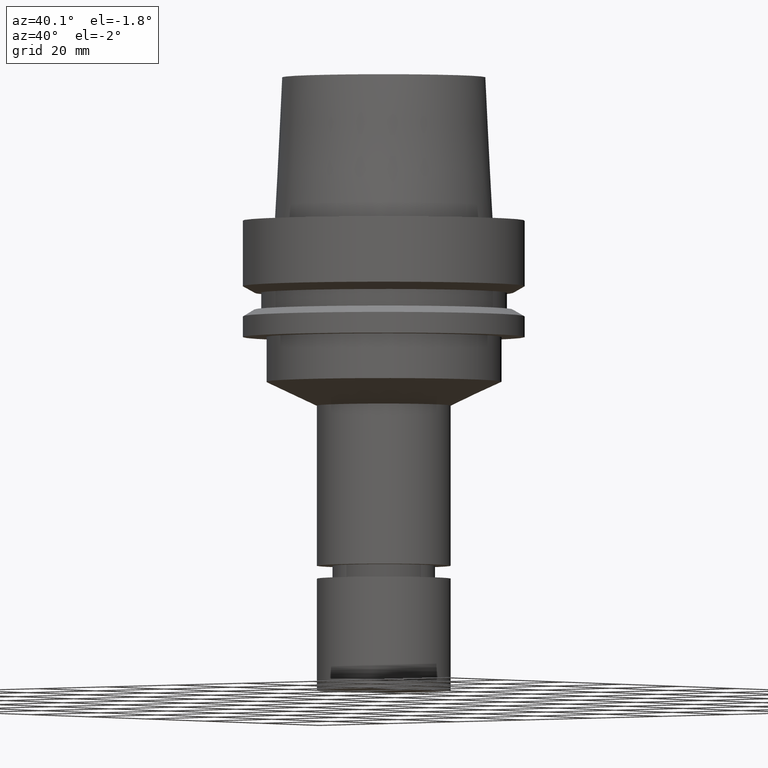
[diagram: clean part render]
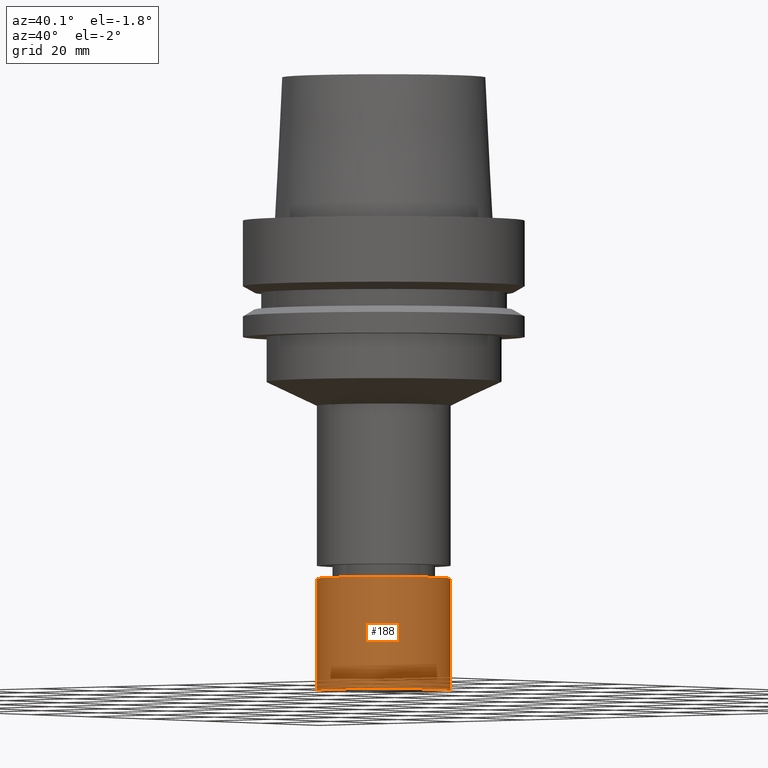
[diagram: same view with one face highlighted and labeled with its STEP entity id]
A machine part, auxiliary view. The second image highlights one B-rep face of the part: STEP entity #188.
In plain terms, the highlighted cylindrical surface (bore or boss wall) has radius 15 mm, axis along (0, 0, -1).
Its self-contained STEP definition (entity closure, byte-faithful):
#139=EDGE_CURVE('Unnamed[1]',#304,#304,#305,.T.);
#179=EDGE_CURVE('Unnamed[1]',#367,#367,#368,.T.);
#188=ADVANCED_FACE('Unnamed[1]',(#381,#382),#383,.T.);
#304=VERTEX_POINT('',#518);
#305=CIRCLE('',#519,15.0000000000001);
#367=VERTEX_POINT('',#597);
#368=CIRCLE('',#598,15.0);
#381=FACE_BOUND('',#614,.T.);
#382=FACE_BOUND('',#615,.T.);
#383=CYLINDRICAL_SURFACE('',#616,15.0);
#518=CARTESIAN_POINT('',(4.89858719658942E-015,15.0000000000001,-80.0000000000001));
#519=AXIS2_PLACEMENT_3D('',#725,#726,#727);
#597=CARTESIAN_POINT('',(6.4293956955236E-015,15.0,-105.0));
#598=AXIS2_PLACEMENT_3D('',#796,#797,#798);
#614=EDGE_LOOP('',(#812));
#615=EDGE_LOOP('',(#813));
#616=AXIS2_PLACEMENT_3D('',#814,#815,#816);
#725=CARTESIAN_POINT('',(4.89858719658942E-015,9.79717439317883E-015,-80.0000000000001));
#726=DIRECTION('',(6.12323399573677E-017,1.22464679914735E-016,-1.0));
#727=DIRECTION('',(-1.23259516440783E-032,1.0,1.22464679914735E-016));
#796=CARTESIAN_POINT('',(6.4293956955236E-015,1.28587913910472E-014,-105.0));
#797=DIRECTION('',(6.12323399573677E-017,1.22464679914735E-016,-1.0));
#798=DIRECTION('',(-1.23259516440783E-032,1.0,1.22464679914735E-016));
#812=ORIENTED_EDGE('',*,*,#179,.F.);
#813=ORIENTED_EDGE('',*,*,#139,.T.);
#814=CARTESIAN_POINT('',(5.66399144605651E-015,1.1327982892113E-014,-92.5));
#815=DIRECTION('',(6.12323399573677E-017,1.22464679914735E-016,-1.0));
#816=DIRECTION('',(-1.23259516440783E-032,1.0,1.22464679914735E-016));